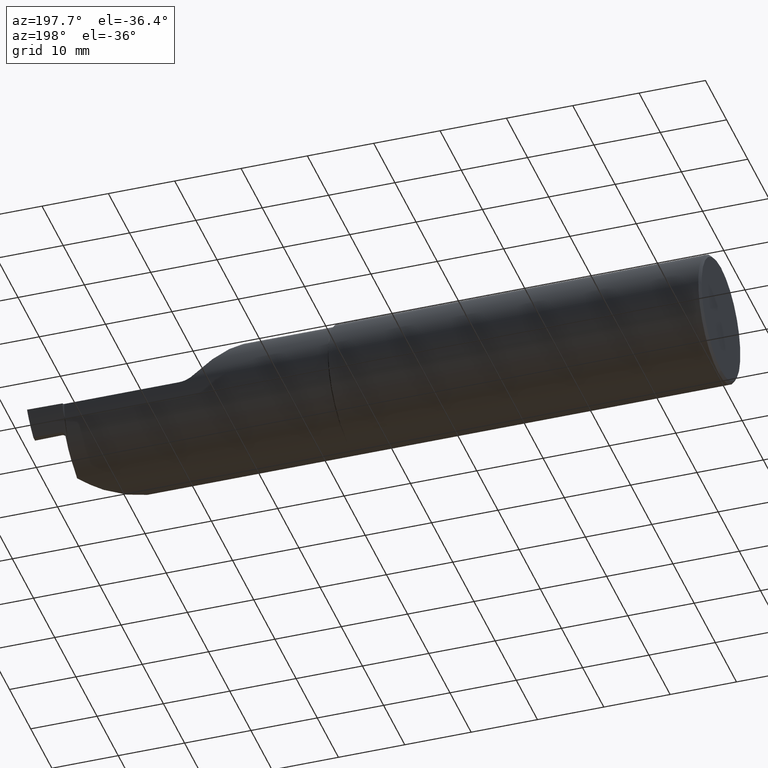
[diagram: clean part render]
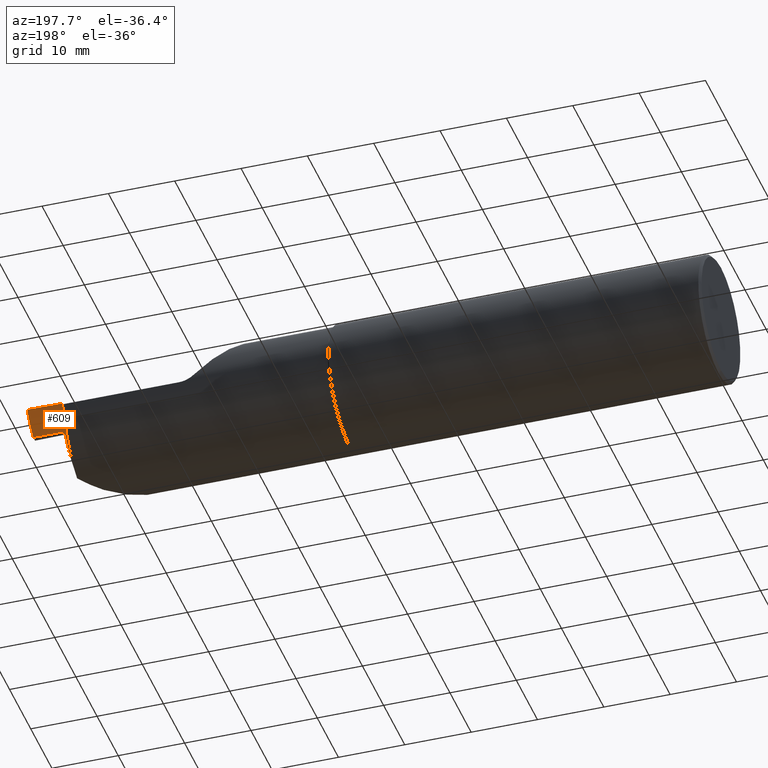
[diagram: same view with one face highlighted and labeled with its STEP entity id]
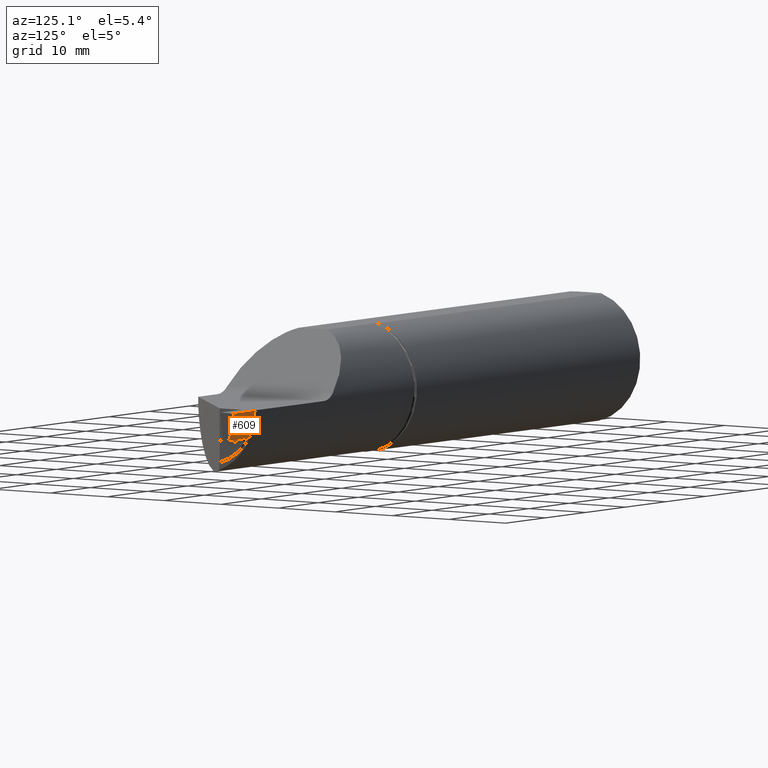
[diagram: same view with one face highlighted and labeled with its STEP entity id]
A machine part, auxiliary view. The second image highlights one B-rep face of the part: STEP entity #609.
A second angle (auxiliary view) of the same face is appended — the face is thin or edge-on in the first view.
In plain terms, the highlighted cylindrical surface (partial cylindrical patch) has radius 8.763 mm, axis along (-0.9998, -0.0175, -0).
Its self-contained STEP definition (entity closure, byte-faithful):
#14 = EDGE_CURVE ( 'NONE', #130, #617, #816, .T. ) ;
#20 = AXIS2_PLACEMENT_3D ( 'NONE', #134, #710, #43 ) ;
#40 = VERTEX_POINT ( 'NONE', #884 ) ;
#43 = DIRECTION ( 'NONE',  ( 0.01745240643726903712, -0.9998476951563913806, 0.000000000000000000 ) ) ;
#48 = CARTESIAN_POINT ( 'NONE',  ( 3.789999999999999591, 0.3646297428742253377, -0.01690049160514383100 ) ) ;
#68 = CARTESIAN_POINT ( 'NONE',  ( 3.793078899330582399, 0.1232288993305819952, -0.3019236912555518515 ) ) ;
#73 = DIRECTION ( 'NONE',  ( -0.9998476951563914916, -0.01745240643726934937, -0.000000000000000000 ) ) ;
#91 = DIRECTION ( 'NONE',  ( 0.9998476951563914916, 0.01745240643726934937, 0.000000000000000000 ) ) ;
#116 = VECTOR ( 'NONE', #793, 39.37007874015748143 ) ;
#117 = VERTEX_POINT ( 'NONE', #131 ) ;
#129 = VERTEX_POINT ( 'NONE', #317 ) ;
#130 = VERTEX_POINT ( 'NONE', #160 ) ;
#131 = CARTESIAN_POINT ( 'NONE',  ( 3.980354470255535126, 0.3149128027865620294, -0.1600000000000000033 ) ) ;
#134 = CARTESIAN_POINT ( 'NONE',  ( 3.791121225051499177, 0.02228897509109214331, 0.02800000000000001446 ) ) ;
#139 = CIRCLE ( 'NONE', #20, 0.3449999999999999734 ) ;
#143 = ORIENTED_EDGE ( 'NONE', *, *, #831, .F. ) ;
#155 = CARTESIAN_POINT ( 'NONE',  ( 4.221006398179700803, 0.3191133978135754501, -0.1600000000000000033 ) ) ;
#160 = CARTESIAN_POINT ( 'NONE',  ( 3.819900000000000073, 0.3121120595902309725, -0.1600000000000000588 ) ) ;
#161 = CARTESIAN_POINT ( 'NONE',  ( 3.791253233572254189, 0.1214032335722543543, -0.3024668277763196689 ) ) ;
#164 = B_SPLINE_CURVE_WITH_KNOTS ( 'NONE', 3,
 ( #690, #1005, #843, #611, #543, #931, #48, #376 ),
 .UNSPECIFIED., .F., .F.,
 ( 4, 2, 2, 4 ),
 ( 3.085272795397988699E-05, 0.0005215992447127906989, 0.001012345761471601484, 0.001993838794989220668 ),
 .UNSPECIFIED. ) ;
#215 = CARTESIAN_POINT ( 'NONE',  ( 3.796901567429705526, 0.3027362125026687445, -0.1732212227720819342 ) ) ;
#231 = LINE ( 'NONE', #155, #498 ) ;
#233 = CYLINDRICAL_SURFACE ( 'NONE', #557, 0.3449999999999999734 ) ;
#237 = EDGE_CURVE ( 'NONE', #130, #117, #231, .T. ) ;
#240 = CARTESIAN_POINT ( 'NONE',  ( 3.812560412763629447, 0.3114387564510273654, -0.1608444531250966536 ) ) ;
#245 = CARTESIAN_POINT ( 'NONE',  ( 3.794900000000000162, 0.1250500000000001333, -0.3013659600542802908 ) ) ;
#275 = ORIENTED_EDGE ( 'NONE', *, *, #462, .T. ) ;
#291 = VERTEX_POINT ( 'NONE', #389 ) ;
#317 = CARTESIAN_POINT ( 'NONE',  ( 3.789423123917253555, 0.1195731239172540816, -0.3029953335618298382 ) ) ;
#322 =( BOUNDED_CURVE ( )  B_SPLINE_CURVE ( 3, ( #576, #161, #68, #736 ),
 .UNSPECIFIED., .F., .F. ) 
 B_SPLINE_CURVE_WITH_KNOTS ( ( 4, 4 ),
 ( 1.856701497906702691, 1.872996632874086131 ),
 .UNSPECIFIED. ) 
 CURVE ( )  GEOMETRIC_REPRESENTATION_ITEM ( )  RATIONAL_B_SPLINE_CURVE ( ( 1.000000000000000000, 0.9999778725037737903, 0.9999778725037737903, 1.000000000000000000 ) ) 
 REPRESENTATION_ITEM ( '' )  );
#333 = EDGE_CURVE ( 'NONE', #291, #597, #918, .T. ) ;
#364 = ORIENTED_EDGE ( 'NONE', *, *, #14, .T. ) ;
#369 = ORIENTED_EDGE ( 'NONE', *, *, #573, .T. ) ;
#376 = CARTESIAN_POINT ( 'NONE',  ( 3.790000000000000480, 0.3658275707489379580, -0.004073931813357871759 ) ) ;
#389 = CARTESIAN_POINT ( 'NONE',  ( 3.790000000000000480, 0.3658275707489379580, -0.004073931813357871759 ) ) ;
#399 = CARTESIAN_POINT ( 'NONE',  ( 3.794900000000000162, 0.1250500000000001333, -0.3013659600542802908 ) ) ;
#404 = CARTESIAN_POINT ( 'NONE',  ( 4.000000000000000000, 0.3698492383597805078, -8.537024980200822804E-16 ) ) ;
#405 = CARTESIAN_POINT ( 'NONE',  ( 3.794900000000000162, 0.2937926642038051206, -0.1849999999999999423 ) ) ;
#409 = FACE_OUTER_BOUND ( 'NONE', #928, .T. ) ;
#462 = EDGE_CURVE ( 'NONE', #129, #40, #139, .T. ) ;
#498 = VECTOR ( 'NONE', #91, 39.37007874015748143 ) ;
#506 = CARTESIAN_POINT ( 'NONE',  ( 3.789999999999999591, 0.3661836747248578550, 0.000000000000000000 ) ) ;
#507 = CARTESIAN_POINT ( 'NONE',  ( 3.986276353897807656, 0.3463653851342392564, -0.1117701281111725675 ) ) ;
#526 = CARTESIAN_POINT ( 'NONE',  ( 3.794900000000000162, 0.2983586823566219404, -0.1791830417708423218 ) ) ;
#542 = CARTESIAN_POINT ( 'NONE',  ( 3.794900000000000162, 0.2937926642038051206, -0.1849999999999999423 ) ) ;
#543 = CARTESIAN_POINT ( 'NONE',  ( 3.788958739298583733, 0.3587976399942242600, -0.04840047294003527178 ) ) ;
#557 = AXIS2_PLACEMENT_3D ( 'NONE', #1031, #73, #648 ) ;
#573 = EDGE_CURVE ( 'NONE', #597, #691, #687, .T. ) ;
#576 = CARTESIAN_POINT ( 'NONE',  ( 3.789423123917253555, 0.1195731239172540816, -0.3029953335618298382 ) ) ;
#597 = VERTEX_POINT ( 'NONE', #847 ) ;
#605 = CARTESIAN_POINT ( 'NONE',  ( 4.220053754966592408, 0.3736902909404173911, 0.000000000000000000 ) ) ;
#608 = EDGE_CURVE ( 'NONE', #129, #624, #322, .T. ) ;
#609 = ADVANCED_FACE ( 'NONE', ( #409 ), #233, .T. ) ;
#610 = CARTESIAN_POINT ( 'NONE',  ( 3.816185155525340988, 0.3120472167387276508, -0.1600000000000000588 ) ) ;
#611 = CARTESIAN_POINT ( 'NONE',  ( 3.788583693645187100, 0.3573143910976795401, -0.05463525329794875068 ) ) ;
#617 = VERTEX_POINT ( 'NONE', #870 ) ;
#624 = VERTEX_POINT ( 'NONE', #245 ) ;
#648 = DIRECTION ( 'NONE',  ( 0.01745240643726903712, -0.9998476951563913806, 0.000000000000000000 ) ) ;
#677 = CARTESIAN_POINT ( 'NONE',  ( 3.803427503794221565, 0.3079095291526468547, -0.1659127335071403642 ) ) ;
#679 = CARTESIAN_POINT ( 'NONE',  ( 3.980354470255535126, 0.3149128027865620294, -0.1600000000000000033 ) ) ;
#687 = LINE ( 'NONE', #605, #116 ) ;
#690 = CARTESIAN_POINT ( 'NONE',  ( 3.785397996148164523, 0.3501725393675222398, -0.07916628634185340907 ) ) ;
#691 = VERTEX_POINT ( 'NONE', #404 ) ;
#710 = DIRECTION ( 'NONE',  ( 0.9998476951563914916, 0.01745240643726934937, -0.000000000000000000 ) ) ;
#721 =( BOUNDED_CURVE ( )  B_SPLINE_CURVE ( 3, ( #679, #507, #910, #889 ),
 .UNSPECIFIED., .F., .T. ) 
 B_SPLINE_CURVE_WITH_KNOTS ( ( 4, 4 ),
 ( 1.135686295929002165, 1.630740202856560517 ),
 .UNSPECIFIED. ) 
 CURVE ( )  GEOMETRIC_REPRESENTATION_ITEM ( )  RATIONAL_B_SPLINE_CURVE ( ( 1.000000000000000000, 0.9796808664523767307, 0.9796808664523767307, 1.000000000000000000 ) ) 
 REPRESENTATION_ITEM ( '' )  );
#726 = CARTESIAN_POINT ( 'NONE',  ( 3.790000000000000480, 0.3658275707489379580, -0.004073931813357871759 ) ) ;
#736 = CARTESIAN_POINT ( 'NONE',  ( 3.794900000000000162, 0.1250500000000001333, -0.3013659600542802908 ) ) ;
#782 = EDGE_CURVE ( 'NONE', #40, #291, #164, .T. ) ;
#793 = DIRECTION ( 'NONE',  ( 0.9998476951563914916, 0.01745240643726934937, 0.000000000000000000 ) ) ;
#808 = CARTESIAN_POINT ( 'NONE',  ( 3.794900000000000606, 0.1923059443675563529, -0.2804021970711810807 ) ) ;
#816 = B_SPLINE_CURVE_WITH_KNOTS ( 'NONE', 3,
 ( #923, #610, #240, #995, #677, #215, #526, #542 ),
 .UNSPECIFIED., .F., .F.,
 ( 4, 2, 2, 4 ),
 ( 0.000000000000000000, 0.0002787388934062526237, 0.0005574777868125052474, 0.001114955573624984908 ),
 .UNSPECIFIED. ) ;
#831 = EDGE_CURVE ( 'NONE', #624, #617, #850, .T. ) ;
#841 = ORIENTED_EDGE ( 'NONE', *, *, #888, .F. ) ;
#843 = CARTESIAN_POINT ( 'NONE',  ( 3.787462203667782301, 0.3539930314846512771, -0.06702456654767253996 ) ) ;
#847 = CARTESIAN_POINT ( 'NONE',  ( 3.789999999999999591, 0.3661836747248578550, 0.000000000000000000 ) ) ;
#850 =( BOUNDED_CURVE ( )  B_SPLINE_CURVE ( 3, ( #399, #808, #871, #405 ),
 .UNSPECIFIED., .F., .T. ) 
 B_SPLINE_CURVE_WITH_KNOTS ( ( 4, 4 ),
 ( 1.872996632874086353, 2.476170465845211943 ),
 .UNSPECIFIED. ) 
 CURVE ( )  GEOMETRIC_REPRESENTATION_ITEM ( )  RATIONAL_B_SPLINE_CURVE ( ( 1.000000000000000000, 0.9699108803474034701, 0.9699108803474034701, 1.000000000000000000 ) ) 
 REPRESENTATION_ITEM ( '' )  );
#870 = CARTESIAN_POINT ( 'NONE',  ( 3.794900000000000162, 0.2937926642038051206, -0.1849999999999999423 ) ) ;
#871 = CARTESIAN_POINT ( 'NONE',  ( 3.794900000000000606, 0.2502984423117538548, -0.2404102203469551946 ) ) ;
#884 = CARTESIAN_POINT ( 'NONE',  ( 3.785397996148164523, 0.3501725393675222398, -0.07916628634185340907 ) ) ;
#888 = EDGE_CURVE ( 'NONE', #117, #691, #721, .T. ) ;
#889 = CARTESIAN_POINT ( 'NONE',  ( 4.000000000000000000, 0.3698492383597805078, -8.537024980200822804E-16 ) ) ;
#906 = ORIENTED_EDGE ( 'NONE', *, *, #237, .F. ) ;
#910 = CARTESIAN_POINT ( 'NONE',  ( 3.992960683600534910, 0.3650573345415854543, -0.05733063137335851073 ) ) ;
#918 =( BOUNDED_CURVE ( )  B_SPLINE_CURVE ( 3, ( #726, #957, #965, #506 ),
 .UNSPECIFIED., .F., .F. ) 
 B_SPLINE_CURVE_WITH_KNOTS ( ( 4, 4 ),
 ( 3.048490290917173606, 3.060343870659173238 ),
 .UNSPECIFIED. ) 
 CURVE ( )  GEOMETRIC_REPRESENTATION_ITEM ( )  RATIONAL_B_SPLINE_CURVE ( ( 1.000000000000000000, 0.9999882910882164078, 0.9999882910882164078, 1.000000000000000000 ) ) 
 REPRESENTATION_ITEM ( '' )  );
#923 = CARTESIAN_POINT ( 'NONE',  ( 3.819900000000000073, 0.3121120595902309725, -0.1600000000000000588 ) ) ;
#928 = EDGE_LOOP ( 'NONE', ( #906, #364, #143, #997, #275, #1016, #945, #369, #841 ) ) ;
#931 = CARTESIAN_POINT ( 'NONE',  ( 3.789807922237486970, 0.3627188025861163290, -0.02958741861509979823 ) ) ;
#945 = ORIENTED_EDGE ( 'NONE', *, *, #333, .T. ) ;
#957 = CARTESIAN_POINT ( 'NONE',  ( 3.789999999999999591, 0.3659543210983712824, -0.002716665907331057995 ) ) ;
#965 = CARTESIAN_POINT ( 'NONE',  ( 3.789999999999999591, 0.3660730238135574410, -0.001358672735589528313 ) ) ;
#995 = CARTESIAN_POINT ( 'NONE',  ( 3.806182979473485606, 0.3093685905441608819, -0.1638055824920543191 ) ) ;
#997 = ORIENTED_EDGE ( 'NONE', *, *, #608, .F. ) ;
#1005 = CARTESIAN_POINT ( 'NONE',  ( 3.786836365738582622, 0.3521508135928456684, -0.07319041923324892673 ) ) ;
#1016 = ORIENTED_EDGE ( 'NONE', *, *, #782, .T. ) ;
#1031 = CARTESIAN_POINT ( 'NONE',  ( 4.226054972444528879, 0.02988077189130430161, 0.02800000000000001446 ) ) ;